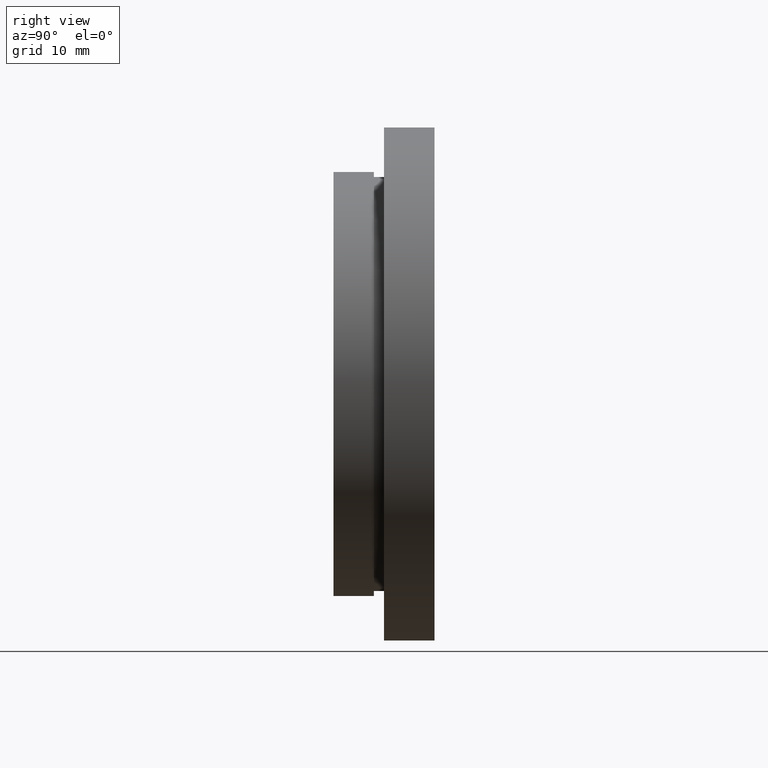
[diagram: clean part render]
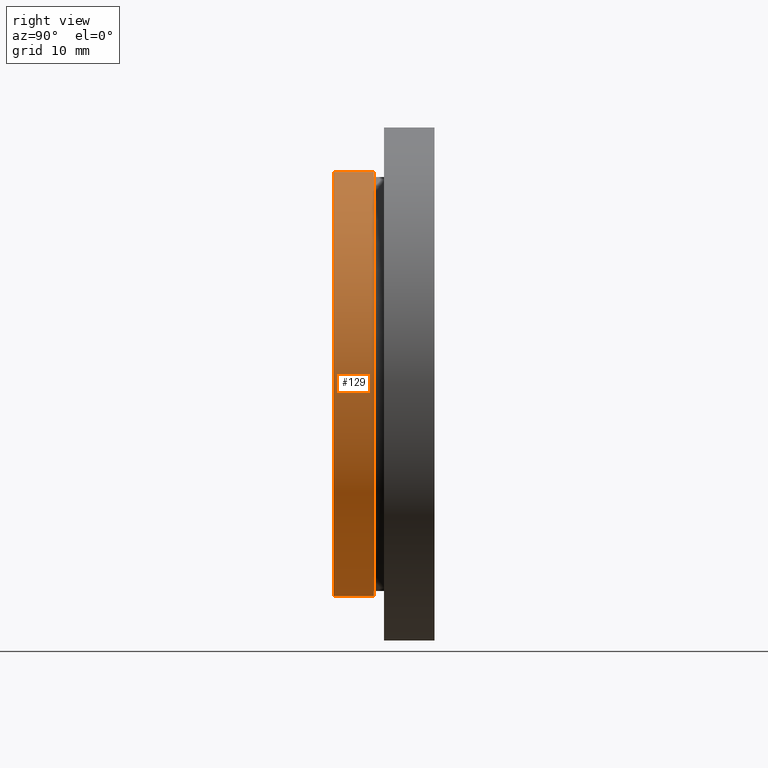
[diagram: same view with one face highlighted and labeled with its STEP entity id]
A machine part, right view. The second image highlights one B-rep face of the part: STEP entity #129.
In plain terms, the highlighted cylindrical surface (partial cylindrical patch) has radius 21 mm, axis along (-0, 1, -0).
Its self-contained STEP definition (entity closure, byte-faithful):
#9 = CARTESIAN_POINT ( 'NONE',  ( 0.0000000000000000000, 0.0000000000000000000, 0.0000000000000000000 ) ) ;
#37 = DIRECTION ( 'NONE',  ( 0.0000000000000000000, 0.0000000000000000000, 1.000000000000000000 ) ) ;
#71 = VECTOR ( 'NONE', #246, 1000.000000000000000 ) ;
#81 = VERTEX_POINT ( 'NONE', #88 ) ;
#88 = CARTESIAN_POINT ( 'NONE',  ( 2.571758278209442100E-015, 0.0000000000000000000, -21.00000000000000400 ) ) ;
#119 = CIRCLE ( 'NONE', #149, 21.00000000000000400 ) ;
#124 = DIRECTION ( 'NONE',  ( -0.0000000000000000000, 1.000000000000000000, -0.0000000000000000000 ) ) ;
#129 = ADVANCED_FACE ( 'NONE', ( #490 ), #341, .T. ) ;
#138 = DIRECTION ( 'NONE',  ( -0.0000000000000000000, 1.000000000000000000, -0.0000000000000000000 ) ) ;
#149 = AXIS2_PLACEMENT_3D ( 'NONE', #489, #124, #436 ) ;
#161 = AXIS2_PLACEMENT_3D ( 'NONE', #426, #138, #531 ) ;
#188 = EDGE_CURVE ( 'NONE', #500, #613, #119, .T. ) ;
#210 = ORIENTED_EDGE ( 'NONE', *, *, #328, .T. ) ;
#232 = EDGE_LOOP ( 'NONE', ( #210, #535, #498, #437 ) ) ;
#235 = DIRECTION ( 'NONE',  ( -0.0000000000000000000, 1.000000000000000000, -0.0000000000000000000 ) ) ;
#246 = DIRECTION ( 'NONE',  ( -0.0000000000000000000, 1.000000000000000000, -0.0000000000000000000 ) ) ;
#296 = CARTESIAN_POINT ( 'NONE',  ( 0.0000000000000000000, 17.41929831819392000, 21.00000000000000400 ) ) ;
#298 = EDGE_CURVE ( 'NONE', #534, #500, #427, .T. ) ;
#312 = CARTESIAN_POINT ( 'NONE',  ( 0.0000000000000000000, 4.000000000000000000, 21.00000000000000400 ) ) ;
#320 = EDGE_CURVE ( 'NONE', #81, #613, #476, .T. ) ;
#328 = EDGE_CURVE ( 'NONE', #534, #81, #467, .T. ) ;
#341 = CYLINDRICAL_SURFACE ( 'NONE', #161, 21.00000000000000400 ) ;
#391 = CARTESIAN_POINT ( 'NONE',  ( 2.571758278209442100E-015, 17.41929831819392000, -21.00000000000000400 ) ) ;
#399 = AXIS2_PLACEMENT_3D ( 'NONE', #9, #475, #37 ) ;
#426 = CARTESIAN_POINT ( 'NONE',  ( 0.0000000000000000000, 17.41929831819392000, 0.0000000000000000000 ) ) ;
#427 = LINE ( 'NONE', #296, #577 ) ;
#436 = DIRECTION ( 'NONE',  ( 0.0000000000000000000, 0.0000000000000000000, 1.000000000000000000 ) ) ;
#437 = ORIENTED_EDGE ( 'NONE', *, *, #298, .F. ) ;
#467 = CIRCLE ( 'NONE', #399, 21.00000000000000400 ) ;
#475 = DIRECTION ( 'NONE',  ( -0.0000000000000000000, 1.000000000000000000, -0.0000000000000000000 ) ) ;
#476 = LINE ( 'NONE', #391, #71 ) ;
#489 = CARTESIAN_POINT ( 'NONE',  ( 0.0000000000000000000, 4.000000000000000000, 0.0000000000000000000 ) ) ;
#490 = FACE_OUTER_BOUND ( 'NONE', #232, .T. ) ;
#498 = ORIENTED_EDGE ( 'NONE', *, *, #188, .F. ) ;
#500 = VERTEX_POINT ( 'NONE', #312 ) ;
#531 = DIRECTION ( 'NONE',  ( 0.0000000000000000000, 0.0000000000000000000, 1.000000000000000000 ) ) ;
#534 = VERTEX_POINT ( 'NONE', #594 ) ;
#535 = ORIENTED_EDGE ( 'NONE', *, *, #320, .T. ) ;
#541 = CARTESIAN_POINT ( 'NONE',  ( 2.571758278209442100E-015, 4.000000000000000000, -21.00000000000000400 ) ) ;
#577 = VECTOR ( 'NONE', #235, 1000.000000000000000 ) ;
#594 = CARTESIAN_POINT ( 'NONE',  ( 0.0000000000000000000, 0.0000000000000000000, 21.00000000000000400 ) ) ;
#613 = VERTEX_POINT ( 'NONE', #541 ) ;